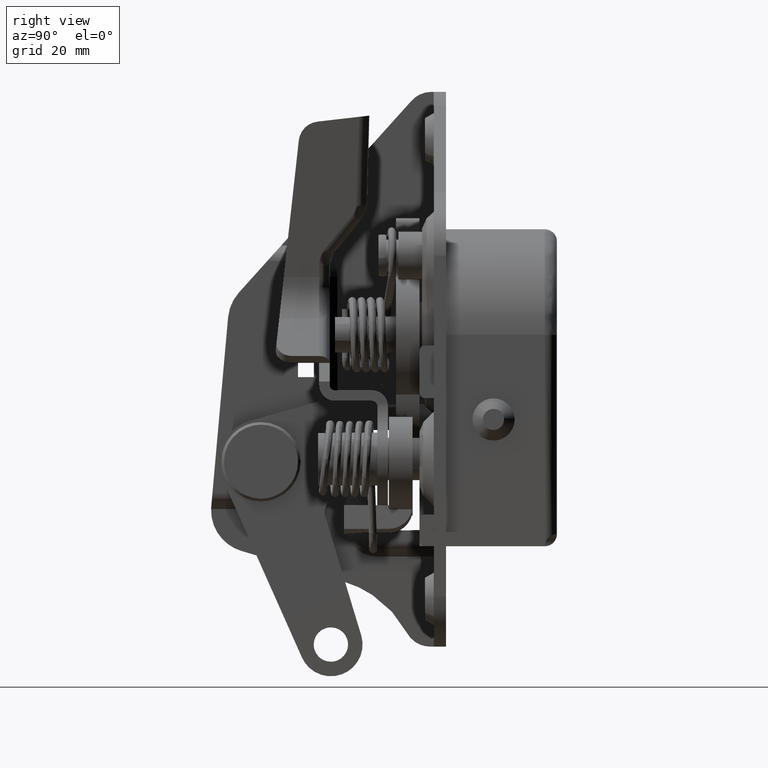
[diagram: clean part render]
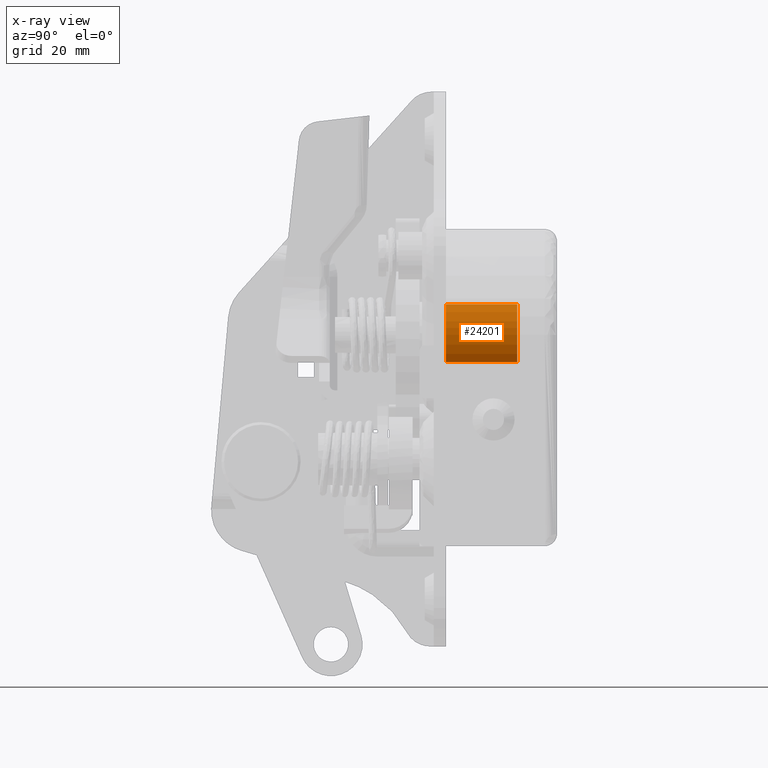
[diagram: x-ray — body ghosted, one internal face saturated and labeled with its STEP entity id]
A machine part, right view, then the same camera in x-ray: the body is ghosted and one INTERNAL B-rep face — a face not visible from any outside direction — is saturated and labeled: STEP entity #24201.
In plain terms, the highlighted face is a freeform B-spline surface patch.
Its self-contained STEP definition (entity closure, byte-faithful):
#24008=CARTESIAN_POINT('',(33.608445492888897,48.500000000003432,18.834063334886970));
#24009=VERTEX_POINT('',#24008);
#24023=CARTESIAN_POINT('',(33.608445493275703,35.0,18.834063335344322));
#24024=VERTEX_POINT('',#24023);
#24025=CARTESIAN_POINT('',(33.608445493275703,35.0,18.834063335344322));
#24026=CARTESIAN_POINT('',(33.608445492888897,48.500000000003432,18.834063334886970));
#24027=QUASI_UNIFORM_CURVE('',1,(#24025,#24026),.UNSPECIFIED.,.F.,.U.);
#24028=EDGE_CURVE('',#24024,#24009,#24027,.T.);
#24076=CARTESIAN_POINT('',(33.006836305958103,35.0,29.802994557187990));
#24077=VERTEX_POINT('',#24076);
#24088=CARTESIAN_POINT('',(33.006836306542262,48.499999999996668,29.802994556633639));
#24089=VERTEX_POINT('',#24088);
#24090=CARTESIAN_POINT('',(33.006836305958103,35.0,29.802994557187990));
#24091=CARTESIAN_POINT('',(33.006836306542262,48.499999999996668,29.802994556633639));
#24092=QUASI_UNIFORM_CURVE('',1,(#24090,#24091),.UNSPECIFIED.,.F.,.U.);
#24093=EDGE_CURVE('',#24077,#24089,#24092,.T.);
#24140=CARTESIAN_POINT('',(33.006836605550028,34.662500000000001,29.802994968098300));
#24141=CARTESIAN_POINT('',(38.486914865400550,34.662500000000001,24.602594876675617));
#24142=CARTESIAN_POINT('',(33.608445143523724,34.662500000000016,18.834063692943801));
#24143=CARTESIAN_POINT('',(33.006836605550028,48.845937500000012,29.802994968098300));
#24144=CARTESIAN_POINT('',(38.486914865400550,48.845937499999998,24.602594876675617));
#24145=CARTESIAN_POINT('',(33.608445143523724,48.845937500000012,18.834063692943801));
#24153=(BOUNDED_SURFACE()B_SPLINE_SURFACE(2,1,((#24140,#24143),(#24141,#24144),(#24142,#24145)),.UNSPECIFIED.,.F.,.F.,.U.)B_SPLINE_SURFACE_WITH_KNOTS((3,3),(2,2),(0.0,12.721148469670331),(0.0,14.183437500000000),.UNSPECIFIED.)GEOMETRIC_REPRESENTATION_ITEM()RATIONAL_B_SPLINE_SURFACE(((1.0,1.0),(0.718822509939086,0.718822509939086),(0.977505800795127,0.977505800795127)))REPRESENTATION_ITEM('')SURFACE());
#24154=CARTESIAN_POINT('',(35.499999999999751,48.500000000000007,23.999997980074710));
#24155=VERTEX_POINT('',#24154);
#24156=CARTESIAN_POINT('',(35.499999999999751,48.500000000000007,23.999997980074710));
#24157=CARTESIAN_POINT('',(35.500026332545687,48.500000000000320,23.502755578579560));
#24158=CARTESIAN_POINT('',(35.396123232853007,48.500000000001073,22.391254174373191));
#24159=CARTESIAN_POINT('',(34.836377067274050,48.500000000002217,20.591887061161380));
#24160=CARTESIAN_POINT('',(34.099750455111177,48.500000000003439,19.414582333629419));
#24161=CARTESIAN_POINT('',(33.608445492888897,48.500000000003432,18.834063334886970));
#24162=B_SPLINE_CURVE_WITH_KNOTS('',3,(#24156,#24157,#24158,#24159,#24160,#24161),.UNSPECIFIED.,.F.,.U.,(4,1,1,4),(0.000000024751857,1.491746760305967,3.334484151123558,5.615983986129687),.UNSPECIFIED.);
#24163=EDGE_CURVE('',#24155,#24009,#24162,.T.);
#24164=ORIENTED_EDGE('',*,*,#24163,.F.);
#24165=CARTESIAN_POINT('',(33.006836306542262,48.499999999996668,29.802994556633639));
#24166=CARTESIAN_POINT('',(33.448468378794693,48.499999999996838,29.384094016330209));
#24167=CARTESIAN_POINT('',(34.038503360789832,48.499999999997463,28.679574548976831));
#24168=CARTESIAN_POINT('',(34.736045393628693,48.499999999997939,27.478763078810509));
#24169=CARTESIAN_POINT('',(35.316063335283943,48.499999999998799,26.028785809866530));
#24170=CARTESIAN_POINT('',(35.500318177277073,48.499999999999623,24.777799659052821));
#24171=CARTESIAN_POINT('',(35.499999999999751,48.500000000000007,23.999997980074710));
#24172=B_SPLINE_CURVE_WITH_KNOTS('',3,(#24165,#24166,#24167,#24168,#24169,#24170,#24171),.UNSPECIFIED.,.F.,.U.,(4,1,1,1,4),(0.000000032538359,1.826064357667773,2.739100708899345,4.159364765624385,6.492670065815066),.UNSPECIFIED.);
#24173=EDGE_CURVE('',#24089,#24155,#24172,.T.);
#24174=ORIENTED_EDGE('',*,*,#24173,.F.);
#24175=ORIENTED_EDGE('',*,*,#24093,.F.);
#24176=CARTESIAN_POINT('',(35.499999999999751,35.0,23.999997980074710));
#24177=VERTEX_POINT('',#24176);
#24178=CARTESIAN_POINT('',(33.006836305958103,35.0,29.802994557187990));
#24179=CARTESIAN_POINT('',(33.571256058654697,35.000000000000050,29.267823375522049));
#24180=CARTESIAN_POINT('',(34.351844754397952,34.999999999999858,28.273042325261500));
#24181=CARTESIAN_POINT('',(35.004376694321152,35.000000000000128,26.854220067675229));
#24182=CARTESIAN_POINT('',(35.395249523853543,34.999999999999950,25.521651841693380));
#24183=CARTESIAN_POINT('',(35.500140734701567,34.999999999999993,24.608699627926669));
#24184=CARTESIAN_POINT('',(35.499999999999751,35.0,23.999997980074710));
#24185=B_SPLINE_CURVE_WITH_KNOTS('',3,(#24178,#24179,#24180,#24181,#24182,#24183,#24184),.UNSPECIFIED.,.F.,.U.,(4,1,1,1,4),(0.000000032540177,2.333305332995529,3.753569389945562,4.666605741265050,6.492670066620413),.UNSPECIFIED.);
#24186=EDGE_CURVE('',#24077,#24177,#24185,.T.);
#24187=ORIENTED_EDGE('',*,*,#24186,.T.);
#24188=CARTESIAN_POINT('',(35.499999999999751,35.0,23.999997980074710));
#24189=CARTESIAN_POINT('',(35.500029712551630,35.000000000000107,23.561251079892511));
#24190=CARTESIAN_POINT('',(35.425226423784743,34.999999999999829,22.654510501971110));
#24191=CARTESIAN_POINT('',(35.066171031394333,35.000000000000163,21.261260041675349));
#24192=CARTESIAN_POINT('',(34.454291583289283,34.999999999999943,19.957466659531949));
#24193=CARTESIAN_POINT('',(33.891784573989149,35.000000000000057,19.169052803274901));
#24194=CARTESIAN_POINT('',(33.608445493275703,35.0,18.834063335344322));
#24195=B_SPLINE_CURVE_WITH_KNOTS('',3,(#24188,#24189,#24190,#24191,#24192,#24193,#24194),.UNSPECIFIED.,.F.,.U.,(4,1,1,1,4),(0.000000024755128,1.316245269722029,2.720260265351582,4.299738740536680,5.615983985530690),.UNSPECIFIED.);
#24196=EDGE_CURVE('',#24177,#24024,#24195,.T.);
#24197=ORIENTED_EDGE('',*,*,#24196,.T.);
#24198=ORIENTED_EDGE('',*,*,#24028,.T.);
#24199=EDGE_LOOP('',(#24164,#24174,#24175,#24187,#24197,#24198));
#24200=FACE_OUTER_BOUND('',#24199,.T.);
#24201=ADVANCED_FACE('',(#24200),#24153,.T.);